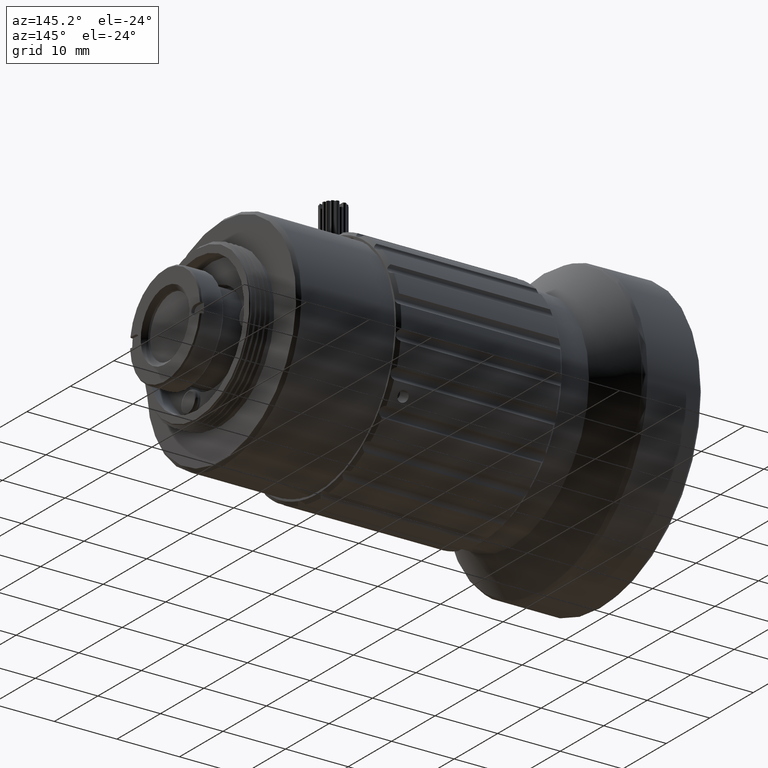
[diagram: clean part render]
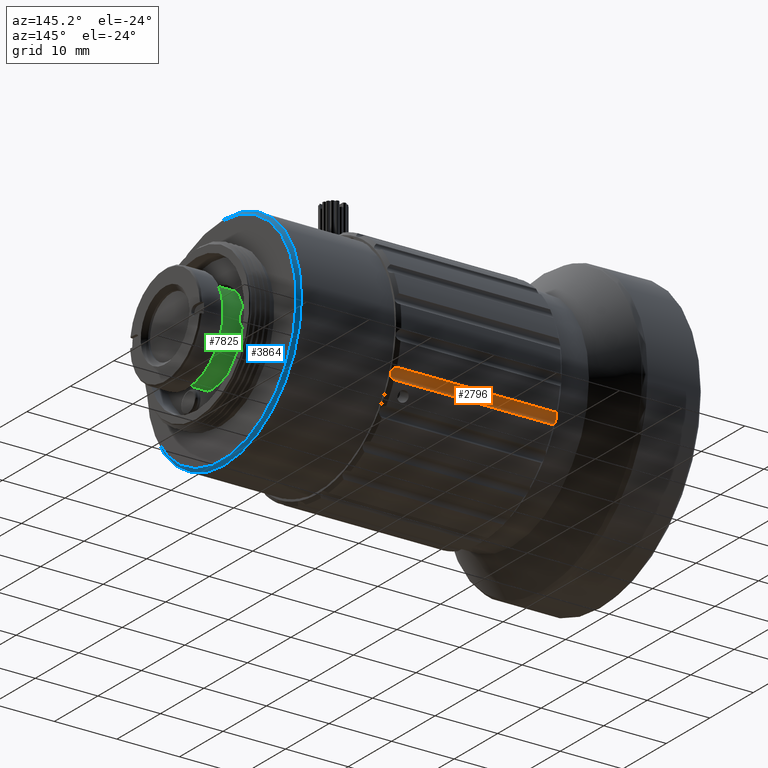
[diagram: same view with three faces highlighted in distinct colors, each labeled with its STEP entity id]
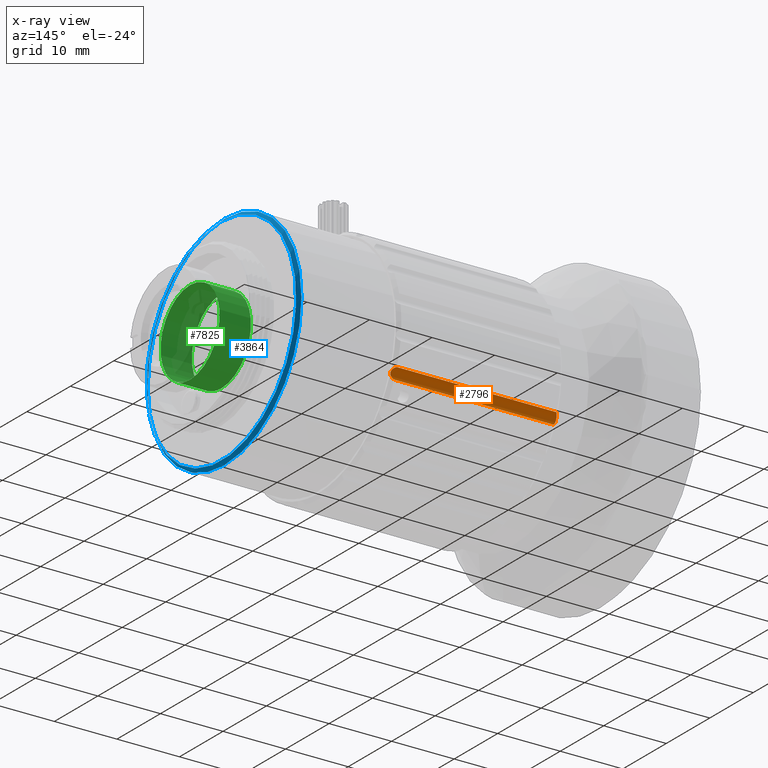
[diagram: x-ray of the same camera — body ghosted, the three highlighted faces saturated]
A machine part, auxiliary view with three faces highlighted in distinct colors.
The next image is the same camera in x-ray (body ghosted, the three faces saturated) — at least one of them is partly hidden behind the body in this view.
Their STEP definitions:

[orange] entity #2796 — the highlighted cylindrical surface (edge-blend (fillet) strip) has radius 1 mm, axis along (-1, -0, -0).
#60 = ORIENTED_EDGE ( 'NONE', *, *, #380, .F. ) ;
#366 = VERTEX_POINT ( 'NONE', #6373 ) ;
#380 = EDGE_CURVE ( 'NONE', #6949, #366, #11410, .T. ) ;
#422 = ORIENTED_EDGE ( 'NONE', *, *, #1754, .F. ) ;
#666 = CARTESIAN_POINT ( 'NONE',  ( -21.18836318882961578, 14.98895905037687903, 61.72666113250676290 ) ) ;
#686 = CARTESIAN_POINT ( 'NONE',  ( -21.14019457697694904, 14.81657554268745436, 61.17358178106044875 ) ) ;
#953 = CARTESIAN_POINT ( 'NONE',  ( -21.09248100311343777, 15.17041870351308042, 61.93475884279015986 ) ) ;
#1463 = CARTESIAN_POINT ( 'NONE',  ( 5.280282019125582593, 14.84376408240397716, 61.36404439055583993 ) ) ;
#1618 = VERTEX_POINT ( 'NONE', #6286 ) ;
#1750 = CARTESIAN_POINT ( 'NONE',  ( 4.860262832029992097, 15.59364184532375752, 62.15333337659610180 ) ) ;
#1754 = EDGE_CURVE ( 'NONE', #11571, #14921, #13032, .T. ) ;
#1850 = DIRECTION ( 'NONE',  ( 0.000000000000000000, -0.8660254037844358210, 0.5000000000000049960 ) ) ;
#1874 = CARTESIAN_POINT ( 'NONE',  ( -20.82946731413982278, 15.52189307485650005, 62.13329932920323273 ) ) ;
#1935 = ORIENTED_EDGE ( 'NONE', *, *, #10968, .F. ) ;
#2796 = ADVANCED_FACE ( 'NONE', ( #4488 ), #9092, .F. ) ;
#2812 = VECTOR ( 'NONE', #5550, 1000.000000000000000 ) ;
#2888 = CARTESIAN_POINT ( 'NONE',  ( 5.295947078013740317, 14.93907050704821238, 61.64200081203164672 ) ) ;
#3130 = CARTESIAN_POINT ( 'NONE',  ( -21.20405292198541858, 14.90255664867072838, 61.55079360314603321 ) ) ;
#3713 = LINE ( 'NONE', #11995, #5054 ) ;
#4178 = CARTESIAN_POINT ( 'NONE',  ( 5.224921497693703287, 15.10358764443056501, 61.87159720739643376 ) ) ;
#4239 = CARTESIAN_POINT ( 'NONE',  ( 4.795947078014047626, 15.03089651236527047, 60.57916857507723307 ) ) ;
#4290 = CARTESIAN_POINT ( 'NONE',  ( -21.13244060052776518, 15.10470575340247557, 61.87288993399277359 ) ) ;
#4488 = FACE_OUTER_BOUND ( 'NONE', #12498, .T. ) ;
#4601 = CARTESIAN_POINT ( 'NONE',  ( 5.036839475663484222, 15.37831839941411083, 62.07420471272384077 ) ) ;
#4720 = CARTESIAN_POINT ( 'NONE',  ( 5.184493270756965089, 14.83142673151303015, 61.08830076462156455 ) ) ;
#4892 = ORIENTED_EDGE ( 'NONE', *, *, #12330, .F. ) ;
#5054 = VECTOR ( 'NONE', #8528, 1000.000000000000000 ) ;
#5295 = CARTESIAN_POINT ( 'NONE',  ( -20.70405292198535818, 15.03089651236523849, 60.57916857507728281 ) ) ;
#5550 = DIRECTION ( 'NONE',  ( -1.000000000000000000, -5.196204194268909120E-18, -1.232595164407830946E-32 ) ) ;
#5578 = CARTESIAN_POINT ( 'NONE',  ( -21.20405292198541503, 14.93908626768350345, 61.64204018019537301 ) ) ;
#5623 = CARTESIAN_POINT ( 'NONE',  ( 50.20457836348905545, 15.66593861537320720, 62.16542706196216983 ) ) ;
#5745 = CARTESIAN_POINT ( 'NONE',  ( 5.295947078013697684, 14.90255664867077456, 61.55079360314601900 ) ) ;
#6009 = EDGE_CURVE ( 'NONE', #366, #1618, #7818, .T. ) ;
#6237 = CARTESIAN_POINT ( 'NONE',  ( 4.860268732364137811, 14.98691444292838604, 60.63781705035568592 ) ) ;
#6286 = CARTESIAN_POINT ( 'NONE',  ( -20.70405292198536173, 15.66593861537317345, 62.16542706196216272 ) ) ;
#6373 = CARTESIAN_POINT ( 'NONE',  ( 4.795947078014044962, 15.66593861537322852, 62.16542706196217694 ) ) ;
#6413 = CARTESIAN_POINT ( 'NONE',  ( -20.99840877947234574, 15.30759204752611247, 62.03549805932949823 ) ) ;
#6469 = CARTESIAN_POINT ( 'NONE',  ( 5.295947078013697684, 14.90255664867077456, 61.55079360314601900 ) ) ;
#6643 = CARTESIAN_POINT ( 'NONE',  ( -20.70405292198536173, 15.66593861537317345, 62.16542706196216272 ) ) ;
#6801 = AXIS2_PLACEMENT_3D ( 'NONE', #7596, #12189, #1850 ) ;
#6949 = VERTEX_POINT ( 'NONE', #6469 ) ;
#7137 = CARTESIAN_POINT ( 'NONE',  ( 5.224457988342608772, 14.82659476426216116, 61.17851743902745199 ) ) ;
#7562 = CARTESIAN_POINT ( 'NONE',  ( -21.20405292198541858, 14.90255664867072838, 61.55079360314603321 ) ) ;
#7596 = CARTESIAN_POINT ( 'NONE',  ( 5.295947078013565346, 15.83092458168040473, 61.17913114748827752 ) ) ;
#7818 = LINE ( 'NONE', #5623, #2812 ) ;
#8097 = ORIENTED_EDGE ( 'NONE', *, *, #13787, .F. ) ;
#8528 = DIRECTION ( 'NONE',  ( 1.000000000000000000, 5.196204194268909120E-18, 1.232595164407830946E-32 ) ) ;
#8569 = ORIENTED_EDGE ( 'NONE', *, *, #6009, .F. ) ;
#8777 = CARTESIAN_POINT ( 'NONE',  ( 5.091300267095750343, 15.30621624270827574, 62.03463104968696484 ) ) ;
#9056 = VERTEX_POINT ( 'NONE', #4239 ) ;
#9092 = CYLINDRICAL_SURFACE ( 'NONE', #6801, 0.9999999999931075134 ) ;
#9199 = CARTESIAN_POINT ( 'NONE',  ( 4.921565362599320537, 15.52166514405011633, 62.13326302707610438 ) ) ;
#9392 = CARTESIAN_POINT ( 'NONE',  ( 5.295947078013759857, 14.86599261288982454, 61.45946105716607377 ) ) ;
#9469 = CARTESIAN_POINT ( 'NONE',  ( 4.795947078014047626, 15.03089651236527047, 60.57916857507723307 ) ) ;
#10810 = CARTESIAN_POINT ( 'NONE',  ( 5.090421058328771231, 14.86115993371761590, 60.92066908353588417 ) ) ;
#10948 = CARTESIAN_POINT ( 'NONE',  ( 4.795947078014044962, 15.66593861537322852, 62.16542706196217694 ) ) ;
#10968 = EDGE_CURVE ( 'NONE', #9056, #6949, #13328, .T. ) ;
#11095 = CARTESIAN_POINT ( 'NONE',  ( -20.70405292198535818, 15.03089651236523849, 60.57916857507728281 ) ) ;
#11149 = CARTESIAN_POINT ( 'NONE',  ( -20.76834709038708837, 15.59366610952162979, 62.15333743547138567 ) ) ;
#11216 = CARTESIAN_POINT ( 'NONE',  ( -21.20405292198541858, 14.90255664867072838, 61.55079360314603321 ) ) ;
#11410 = B_SPLINE_CURVE_WITH_KNOTS ( 'NONE', 3,
 ( #5745, #2888, #14512, #4178, #14436, #8777, #4601, #9199, #1750, #10948 ),
 .UNSPECIFIED., .F., .F.,
 ( 4, 2, 2, 2, 4 ),
 ( -0.0001411345649718882638, 0.0001480288676531813982, 0.0004371923002782510332, 0.0007263557329033206410, 0.001015519165528390357 ),
 .UNSPECIFIED. ) ;
#11571 = VERTEX_POINT ( 'NONE', #3130 ) ;
#11728 = CARTESIAN_POINT ( 'NONE',  ( 5.295947078013697684, 14.90255664867077456, 61.55079360314601900 ) ) ;
#11799 = CARTESIAN_POINT ( 'NONE',  ( 4.921413783893816785, 14.94878384284018935, 60.70187796999962160 ) ) ;
#11995 = CARTESIAN_POINT ( 'NONE',  ( 50.20457836348905545, 15.03089651236527047, 60.57916857507726860 ) ) ;
#12134 = CARTESIAN_POINT ( 'NONE',  ( -20.94412557220345050, 15.37936316708577422, 62.07469224537963015 ) ) ;
#12156 = CARTESIAN_POINT ( 'NONE',  ( -21.20405292198541503, 14.82954784393548842, 61.36842642531632919 ) ) ;
#12189 = DIRECTION ( 'NONE',  ( -1.000000000000000000, -5.196204194268909120E-18, -1.232595164407830946E-32 ) ) ;
#12330 = EDGE_CURVE ( 'NONE', #14921, #9056, #3713, .T. ) ;
#12498 = EDGE_LOOP ( 'NONE', ( #60, #1935, #4892, #422, #8097, #8569 ) ) ;
#13032 = B_SPLINE_CURVE_WITH_KNOTS ( 'NONE', 3,
 ( #7562, #12156, #686, #14426, #13443, #11095 ),
 .UNSPECIFIED., .F., .F.,
 ( 4, 2, 4 ),
 ( 0.000000000000000000, 0.0005788812589936511268, 0.001157762517987302254 ),
 .UNSPECIFIED. ) ;
#13328 = B_SPLINE_CURVE_WITH_KNOTS ( 'NONE', 3,
 ( #9469, #6237, #11799, #14069, #10810, #4720, #7137, #1463, #9392, #11728 ),
 .UNSPECIFIED., .F., .F.,
 ( 4, 2, 2, 2, 4 ),
 ( 9.341771812940338307E-18, 0.0002881982755677929575, 0.0005763965511355765908, 0.0008645948267033602783, 0.001152793102271143857 ),
 .UNSPECIFIED. ) ;
#13443 = CARTESIAN_POINT ( 'NONE',  ( -20.83273834789549284, 14.94290357444905837, 60.69650392810029160 ) ) ;
#13722 = B_SPLINE_CURVE_WITH_KNOTS ( 'NONE', 3,
 ( #6643, #11149, #1874, #12134, #6413, #953, #4290, #666, #5578, #11216 ),
 .UNSPECIFIED., .F., .F.,
 ( 4, 2, 2, 2, 4 ),
 ( -0.001030038449834301149, -0.0007367583173514342032, -0.0004434781848685672573, -0.0001501980523857003114, 0.0001430820800971666345 ),
 .UNSPECIFIED. ) ;
#13787 = EDGE_CURVE ( 'NONE', #1618, #11571, #13722, .T. ) ;
#14069 = CARTESIAN_POINT ( 'NONE',  ( 5.036114460517198133, 14.88605856247672321, 60.84272204490811475 ) ) ;
#14426 = CARTESIAN_POINT ( 'NONE',  ( -20.95268211296525962, 14.87545957506462280, 60.83851202074055209 ) ) ;
#14436 = CARTESIAN_POINT ( 'NONE',  ( 5.184894105972570166, 15.16958223554805940, 61.93399883447786891 ) ) ;
#14512 = CARTESIAN_POINT ( 'NONE',  ( 5.280155085309132801, 14.98907354823558613, 61.72668489087845245 ) ) ;
#14921 = VERTEX_POINT ( 'NONE', #5295 ) ;

[blue] entity #3864 — the highlighted conical surface has half-angle 45 deg.
#97 = CARTESIAN_POINT ( 'NONE',  ( 20.19594707801219258, -1.808066145625021770, 68.24071780503437878 ) ) ;
#111 = CARTESIAN_POINT ( 'NONE',  ( 20.69594707801235955, -1.808066145625021770, 68.24071780503437878 ) ) ;
#1495 = EDGE_CURVE ( 'NONE', #5141, #5141, #7660, .T. ) ;
#1701 = CARTESIAN_POINT ( 'NONE',  ( 20.19594707801219258, -1.808066145625021770, 68.24071780503437878 ) ) ;
#1777 = FACE_BOUND ( 'NONE', #13339, .T. ) ;
#1868 = AXIS2_PLACEMENT_3D ( 'NONE', #97, #6974, #13896 ) ;
#1945 = DIRECTION ( 'NONE',  ( 0.000000000000000000, 0.000000000000000000, 1.000000000000000000 ) ) ;
#2943 = AXIS2_PLACEMENT_3D ( 'NONE', #1701, #10903, #11055 ) ;
#3450 = VERTEX_POINT ( 'NONE', #11504 ) ;
#3864 = ADVANCED_FACE ( 'NONE', ( #10752, #1777 ), #10404, .T. ) ;
#5141 = VERTEX_POINT ( 'NONE', #14339 ) ;
#6974 = DIRECTION ( 'NONE',  ( -1.000000000000000000, 0.000000000000000000, 0.000000000000000000 ) ) ;
#7088 = ORIENTED_EDGE ( 'NONE', *, *, #7983, .T. ) ;
#7660 = CIRCLE ( 'NONE', #1868, 17.70000000000248974 ) ;
#7983 = EDGE_CURVE ( 'NONE', #3450, #3450, #11987, .T. ) ;
#10404 = CONICAL_SURFACE ( 'NONE', #2943, 17.70000000000269935, 0.7853981633974380649 ) ;
#10752 = FACE_OUTER_BOUND ( 'NONE', #12652, .T. ) ;
#10903 = DIRECTION ( 'NONE',  ( -1.000000000000000000, 0.000000000000000000, 0.000000000000000000 ) ) ;
#11055 = DIRECTION ( 'NONE',  ( 0.000000000000000000, 0.000000000000000000, 1.000000000000000000 ) ) ;
#11504 = CARTESIAN_POINT ( 'NONE',  ( 20.69594707801235955, -1.808066145625021770, 85.44071780503692537 ) ) ;
#11987 = CIRCLE ( 'NONE', #12450, 17.20000000000254659 ) ;
#12450 = AXIS2_PLACEMENT_3D ( 'NONE', #111, #13492, #1945 ) ;
#12652 = EDGE_LOOP ( 'NONE', ( #14267 ) ) ;
#13339 = EDGE_LOOP ( 'NONE', ( #7088 ) ) ;
#13492 = DIRECTION ( 'NONE',  ( -1.000000000000000000, 0.000000000000000000, 0.000000000000000000 ) ) ;
#13896 = DIRECTION ( 'NONE',  ( 0.000000000000000000, 0.000000000000000000, -1.000000000000000000 ) ) ;
#14267 = ORIENTED_EDGE ( 'NONE', *, *, #1495, .F. ) ;
#14339 = CARTESIAN_POINT ( 'NONE',  ( 20.19594707801219258, -1.808066145625021770, 50.54071780503188904 ) ) ;

[green] entity #7825 — the highlighted cylindrical surface (bore or boss wall) has radius 6.8 mm, axis along (1, -0, -0).
#4141 = EDGE_LOOP ( 'NONE', ( #7281 ) ) ;
#4191 = DIRECTION ( 'NONE',  ( 0.000000000000000000, 0.000000000000000000, -1.000000000000000000 ) ) ;
#4223 = EDGE_LOOP ( 'NONE', ( #7926 ) ) ;
#4229 = DIRECTION ( 'NONE',  ( 1.000000000000000000, -0.000000000000000000, -0.000000000000000000 ) ) ;
#4329 = AXIS2_PLACEMENT_3D ( 'NONE', #9765, #9919, #4191 ) ;
#4574 = CIRCLE ( 'NONE', #4329, 6.800000000001915623 ) ;
#7281 = ORIENTED_EDGE ( 'NONE', *, *, #12907, .T. ) ;
#7825 = ADVANCED_FACE ( 'NONE', ( #13279, #12150 ), #13130, .T. ) ;
#7926 = ORIENTED_EDGE ( 'NONE', *, *, #11994, .T. ) ;
#8639 = VERTEX_POINT ( 'NONE', #14518 ) ;
#8859 = AXIS2_PLACEMENT_3D ( 'NONE', #12306, #4229, #11007 ) ;
#8871 = DIRECTION ( 'NONE',  ( 0.000000000000000000, 0.000000000000000000, -1.000000000000000000 ) ) ;
#9167 = AXIS2_PLACEMENT_3D ( 'NONE', #9995, #14606, #8871 ) ;
#9765 = CARTESIAN_POINT ( 'NONE',  ( 20.69594707801280364, -1.808066145625021992, 68.24071780503437878 ) ) ;
#9919 = DIRECTION ( 'NONE',  ( 1.000000000000000000, -0.000000000000000000, -0.000000000000000000 ) ) ;
#9995 = CARTESIAN_POINT ( 'NONE',  ( 25.69882645878206873, -1.808066145625021992, 68.24071780503437878 ) ) ;
#11007 = DIRECTION ( 'NONE',  ( 0.000000000000000000, 0.000000000000000000, -1.000000000000000000 ) ) ;
#11994 = EDGE_CURVE ( 'NONE', #8639, #8639, #4574, .T. ) ;
#12150 = FACE_OUTER_BOUND ( 'NONE', #4223, .T. ) ;
#12306 = CARTESIAN_POINT ( 'NONE',  ( 50.20457836348856517, -1.808066145625021992, 68.24071780503437878 ) ) ;
#12907 = EDGE_CURVE ( 'NONE', #13757, #13757, #13506, .T. ) ;
#13130 = CYLINDRICAL_SURFACE ( 'NONE', #8859, 6.800000000001915623 ) ;
#13279 = FACE_OUTER_BOUND ( 'NONE', #4141, .T. ) ;
#13506 = CIRCLE ( 'NONE', #9167, 6.800000000001915623 ) ;
#13535 = CARTESIAN_POINT ( 'NONE',  ( 25.69882645878206873, -1.808066145625021992, 61.44071780503246316 ) ) ;
#13757 = VERTEX_POINT ( 'NONE', #13535 ) ;
#14518 = CARTESIAN_POINT ( 'NONE',  ( 20.69594707801280364, -1.808066145625021992, 61.44071780503246316 ) ) ;
#14606 = DIRECTION ( 'NONE',  ( -1.000000000000000000, 0.000000000000000000, 0.000000000000000000 ) ) ;